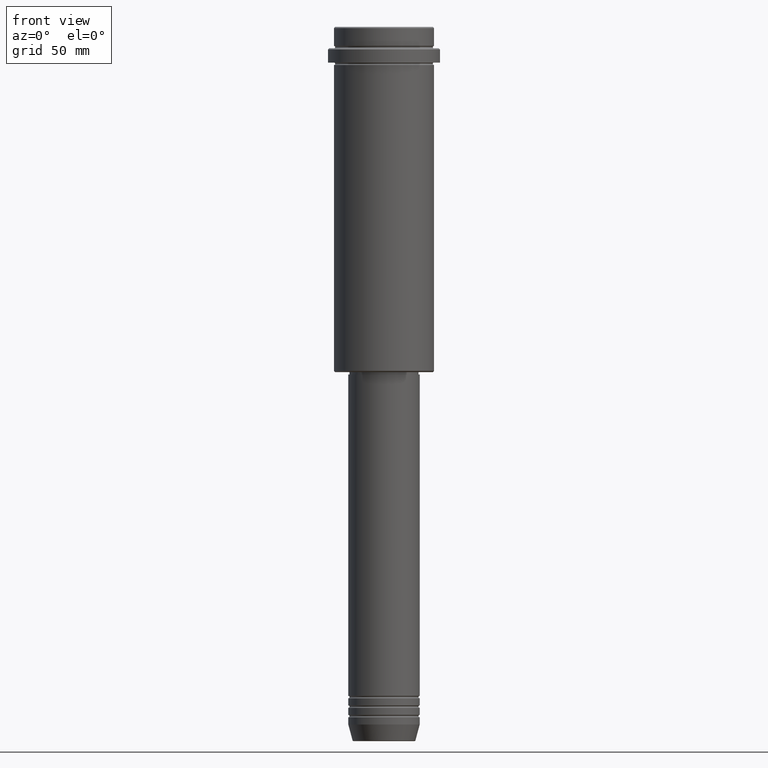
[diagram: clean part render]
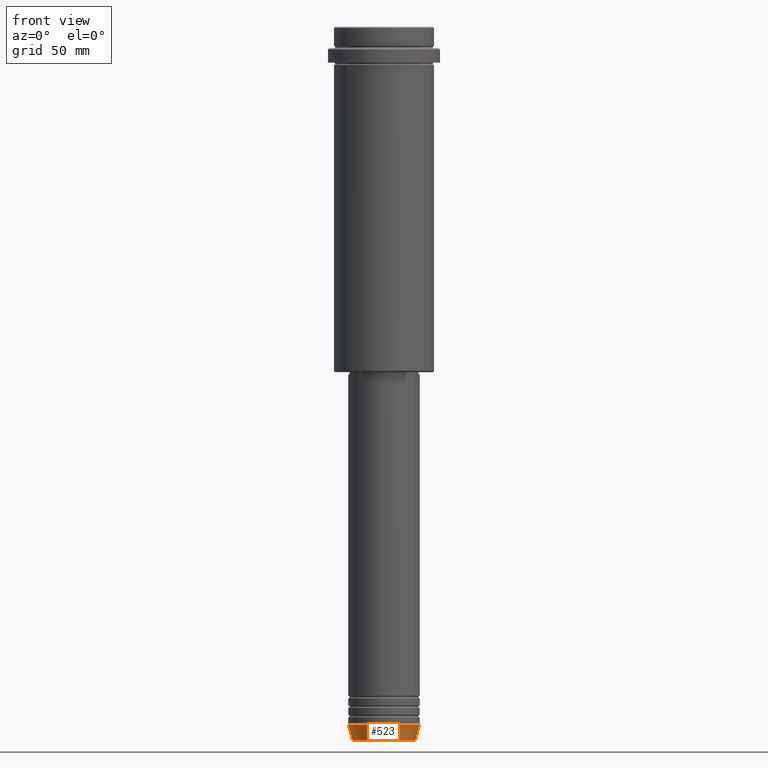
[diagram: same view with one face highlighted and labeled with its STEP entity id]
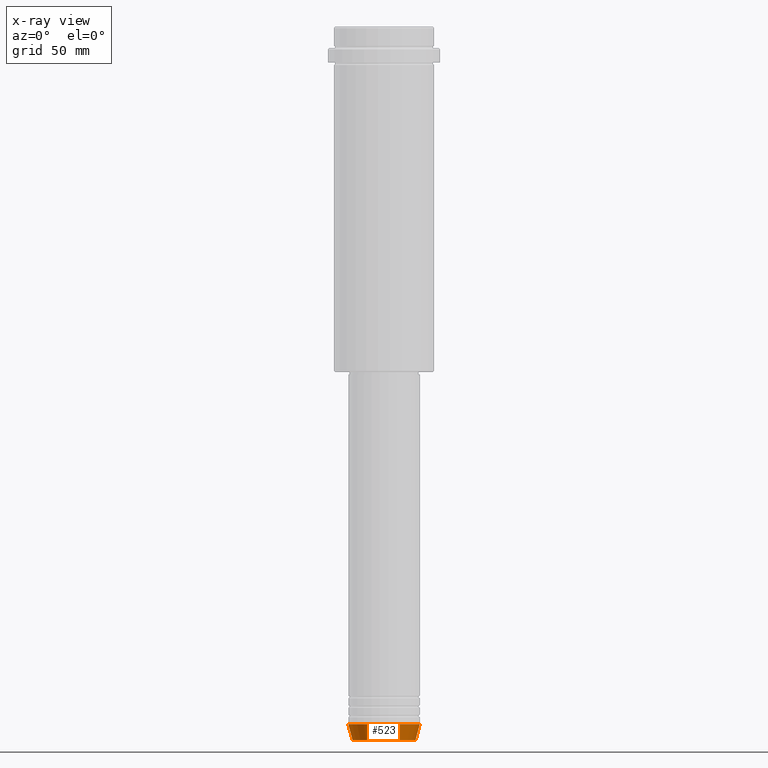
[diagram: x-ray of the same camera — body ghosted, the highlighted face saturated]
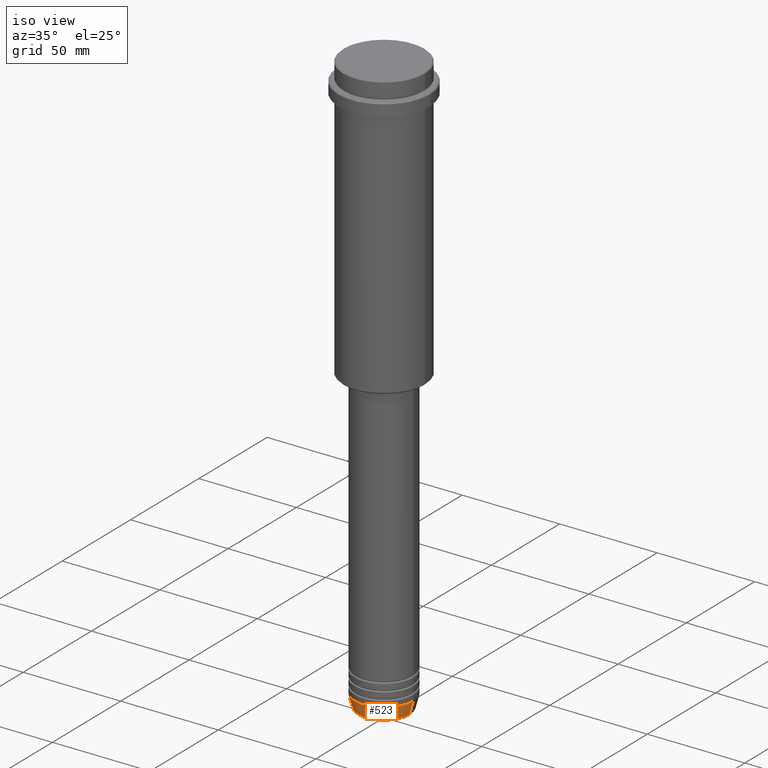
[diagram: same view with one face highlighted and labeled with its STEP entity id]
A machine part, front view. The second image highlights one B-rep face of the part: STEP entity #523.
The next image is the same camera in x-ray: the body ghosted, the highlighted face saturated — about 0% of this face is hidden behind the body in this view.
A second angle (iso view) of the same face is appended — the face is thin or edge-on in the first view.
In plain terms, the highlighted conical surface has half-angle 15 deg.
Its self-contained STEP definition (entity closure, byte-faithful):
#3 = VERTEX_POINT ( 'NONE', #254 ) ;
#16 = CARTESIAN_POINT ( 'NONE',  ( -13.22365507213719127, 1.728200442216588386E-15, -299.6294095225512706 ) ) ;
#49 = ORIENTED_EDGE ( 'NONE', *, *, #1322, .F. ) ;
#62 = DIRECTION ( 'NONE',  ( -0.000000000000000000, -0.000000000000000000, 1.000000000000000000 ) ) ;
#202 = ORIENTED_EDGE ( 'NONE', *, *, #1022, .F. ) ;
#233 = CARTESIAN_POINT ( 'NONE',  ( 0.000000000000000000, 0.000000000000000000, -293.0000000000000000 ) ) ;
#254 = CARTESIAN_POINT ( 'NONE',  ( 13.22365507213719127, 0.000000000000000000, -299.6294095225512706 ) ) ;
#264 = CARTESIAN_POINT ( 'NONE',  ( 15.00000000000000000, 0.000000000000000000, -293.0000000000000000 ) ) ;
#332 = DIRECTION ( 'NONE',  ( -0.2588190451025210725, 3.169619151431769255E-17, 0.9659258262890680902 ) ) ;
#341 = DIRECTION ( 'NONE',  ( -0.000000000000000000, -0.000000000000000000, 1.000000000000000000 ) ) ;
#370 = LINE ( 'NONE', #264, #876 ) ;
#404 = CONICAL_SURFACE ( 'NONE', #873, 15.00000000000000000, 0.2617993877991497964 ) ;
#449 = CARTESIAN_POINT ( 'NONE',  ( 0.000000000000000000, 0.000000000000000000, -299.6294095225512706 ) ) ;
#463 = DIRECTION ( 'NONE',  ( -0.000000000000000000, -0.000000000000000000, 1.000000000000000000 ) ) ;
#473 = CARTESIAN_POINT ( 'NONE',  ( 0.000000000000000000, 0.000000000000000000, -293.0000000000000000 ) ) ;
#505 = CIRCLE ( 'NONE', #1185, 15.00000000000000000 ) ;
#523 = ADVANCED_FACE ( 'NONE', ( #1012 ), #404, .T. ) ;
#555 = EDGE_CURVE ( 'NONE', #903, #3, #943, .T. ) ;
#610 = ORIENTED_EDGE ( 'NONE', *, *, #555, .T. ) ;
#664 = CARTESIAN_POINT ( 'NONE',  ( -15.00000000000000000, 1.836970198721029589E-15, -293.0000000000000000 ) ) ;
#682 = CARTESIAN_POINT ( 'NONE',  ( 15.00000000000000000, 0.000000000000000000, -293.0000000000000000 ) ) ;
#717 = VECTOR ( 'NONE', #332, 1000.000000000000114 ) ;
#719 = DIRECTION ( 'NONE',  ( 0.2588190451025210725, 0.000000000000000000, 0.9659258262890680902 ) ) ;
#759 = LINE ( 'NONE', #664, #717 ) ;
#873 = AXIS2_PLACEMENT_3D ( 'NONE', #233, #341, #1004 ) ;
#876 = VECTOR ( 'NONE', #719, 1000.000000000000114 ) ;
#878 = CARTESIAN_POINT ( 'NONE',  ( -15.00000000000000000, 1.836970198721029589E-15, -293.0000000000000000 ) ) ;
#903 = VERTEX_POINT ( 'NONE', #16 ) ;
#909 = DIRECTION ( 'NONE',  ( 1.000000000000000000, 0.000000000000000000, 0.000000000000000000 ) ) ;
#928 = VERTEX_POINT ( 'NONE', #682 ) ;
#942 = ORIENTED_EDGE ( 'NONE', *, *, #1106, .T. ) ;
#943 = CIRCLE ( 'NONE', #1272, 13.22365507213719127 ) ;
#953 = VERTEX_POINT ( 'NONE', #878 ) ;
#1004 = DIRECTION ( 'NONE',  ( 1.000000000000000000, 0.000000000000000000, 0.000000000000000000 ) ) ;
#1012 = FACE_OUTER_BOUND ( 'NONE', #1221, .T. ) ;
#1021 = DIRECTION ( 'NONE',  ( 1.000000000000000000, 0.000000000000000000, 0.000000000000000000 ) ) ;
#1022 = EDGE_CURVE ( 'NONE', #953, #928, #505, .T. ) ;
#1106 = EDGE_CURVE ( 'NONE', #3, #928, #370, .T. ) ;
#1185 = AXIS2_PLACEMENT_3D ( 'NONE', #473, #62, #1021 ) ;
#1221 = EDGE_LOOP ( 'NONE', ( #49, #610, #942, #202 ) ) ;
#1272 = AXIS2_PLACEMENT_3D ( 'NONE', #449, #463, #909 ) ;
#1322 = EDGE_CURVE ( 'NONE', #903, #953, #759, .T. ) ;